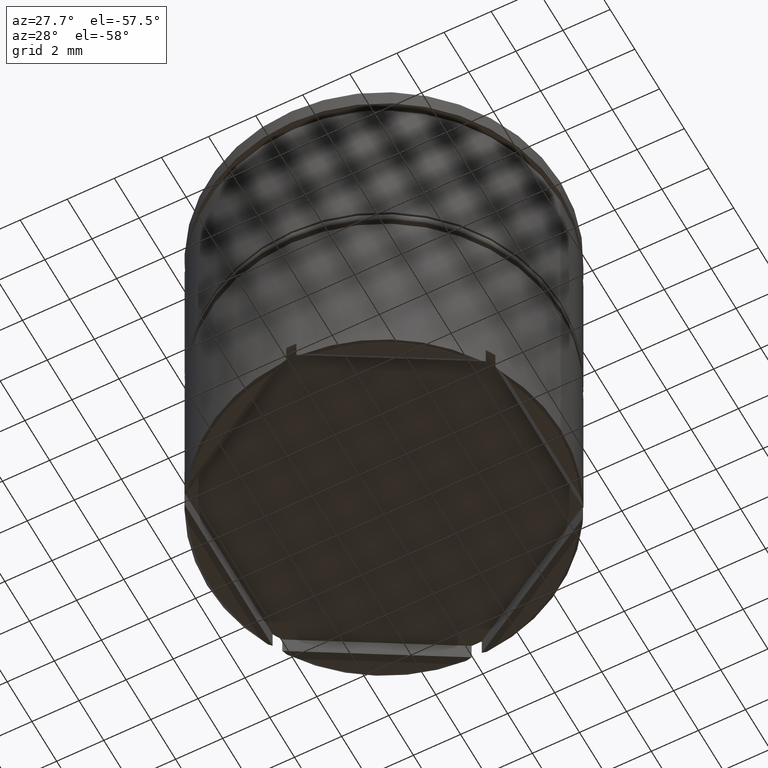
[diagram: clean part render]
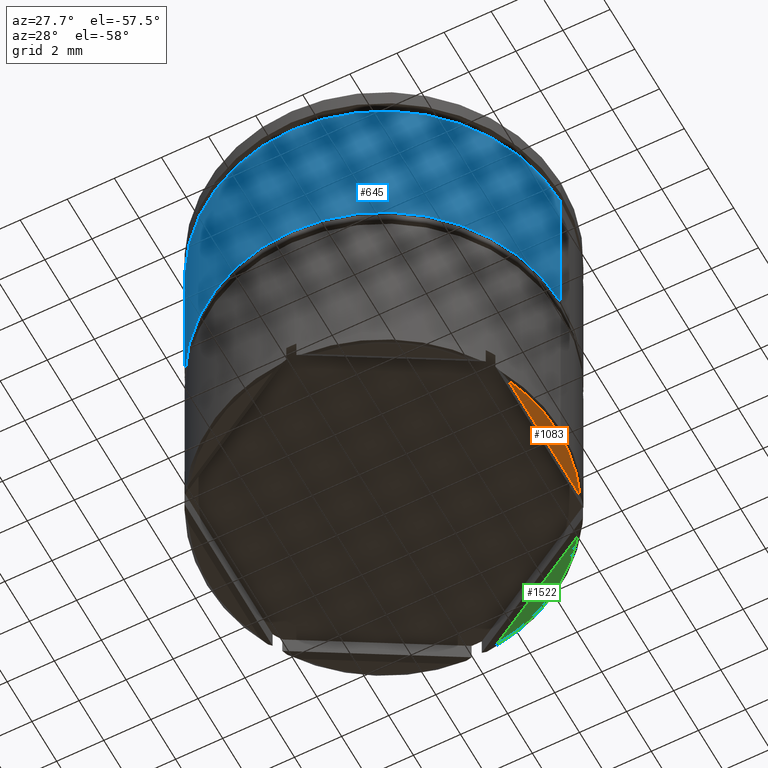
[diagram: same view with three faces highlighted in distinct colors, each labeled with its STEP entity id]
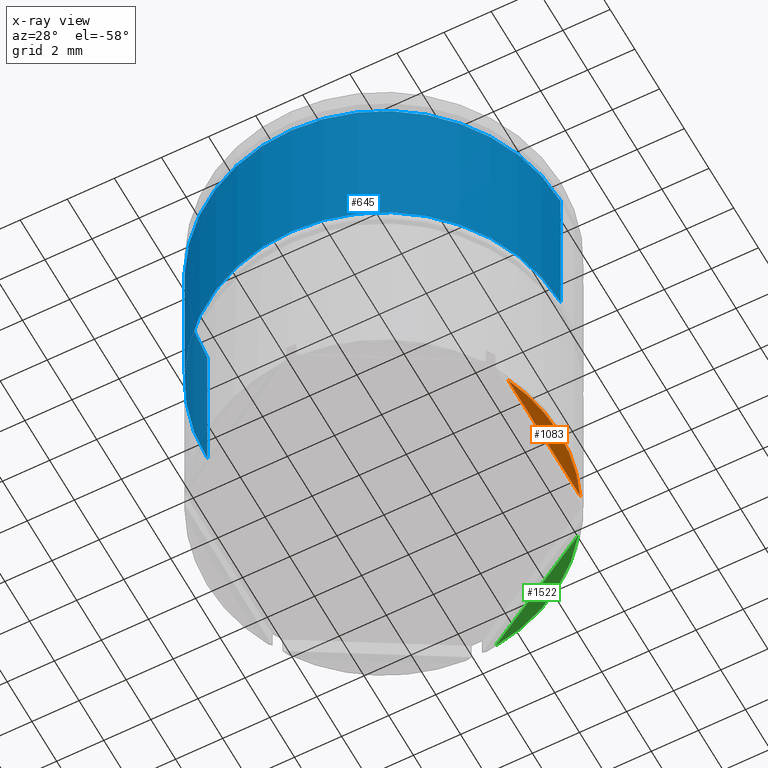
[diagram: x-ray of the same camera — body ghosted, the three highlighted faces saturated]
A machine part, auxiliary view with three faces highlighted in distinct colors.
The next image is the same camera in x-ray (body ghosted, the three faces saturated) — at least one of them is partly hidden behind the body in this view.
Their STEP definitions:

[orange] entity #1083 — the highlighted planar face has unit normal (0, 0, -1).
#33 = VERTEX_POINT ( 'NONE', #372 ) ;
#66 = EDGE_CURVE ( 'NONE', #33, #869, #1030, .T. ) ;
#72 = EDGE_LOOP ( 'NONE', ( #571, #492, #545 ) ) ;
#91 = EDGE_CURVE ( 'NONE', #1117, #33, #1125, .T. ) ;
#151 = DIRECTION ( 'NONE',  ( 0.000000000000000000, 0.000000000000000000, -1.000000000000000000 ) ) ;
#157 = CARTESIAN_POINT ( 'NONE',  ( 0.000000000000000000, 0.000000000000000000, -17.50000000000000000 ) ) ;
#270 = DIRECTION ( 'NONE',  ( -1.138117120255423023E-16, 1.000000000000000000, 0.000000000000000000 ) ) ;
#366 = DIRECTION ( 'NONE',  ( -1.000000000000000000, 0.000000000000000000, 0.000000000000000000 ) ) ;
#368 = EDGE_CURVE ( 'NONE', #869, #1117, #562, .T. ) ;
#372 = CARTESIAN_POINT ( 'NONE',  ( 6.800000000000005151, 2.918903903865290417, -17.50000000000000000 ) ) ;
#492 = ORIENTED_EDGE ( 'NONE', *, *, #368, .T. ) ;
#503 = DIRECTION ( 'NONE',  ( 0.000000000000000000, 0.000000000000000000, -1.000000000000000000 ) ) ;
#545 = ORIENTED_EDGE ( 'NONE', *, *, #91, .T. ) ;
#562 = CIRCLE ( 'NONE', #619, 7.400000000000006573 ) ;
#571 = ORIENTED_EDGE ( 'NONE', *, *, #66, .T. ) ;
#617 = AXIS2_PLACEMENT_3D ( 'NONE', #1489, #151, #1250 ) ;
#619 = AXIS2_PLACEMENT_3D ( 'NONE', #157, #1022, #366 ) ;
#825 = CARTESIAN_POINT ( 'NONE',  ( 6.800000000000005151, -2.918903903865288640, -17.50000000000000000 ) ) ;
#869 = VERTEX_POINT ( 'NONE', #1053 ) ;
#1002 = DIRECTION ( 'NONE',  ( -1.000000000000000000, 0.000000000000000000, -0.000000000000000000 ) ) ;
#1022 = DIRECTION ( 'NONE',  ( 0.000000000000000000, 0.000000000000000000, -1.000000000000000000 ) ) ;
#1030 = CIRCLE ( 'NONE', #617, 7.400000000000006573 ) ;
#1053 = CARTESIAN_POINT ( 'NONE',  ( 7.400000000000006573, 0.000000000000000000, -17.50000000000000000 ) ) ;
#1083 = ADVANCED_FACE ( 'NONE', ( #1252 ), #1127, .T. ) ;
#1117 = VERTEX_POINT ( 'NONE', #825 ) ;
#1125 = LINE ( 'NONE', #1517, #1244 ) ;
#1127 = PLANE ( 'NONE',  #1613 ) ;
#1244 = VECTOR ( 'NONE', #270, 1000.000000000000000 ) ;
#1250 = DIRECTION ( 'NONE',  ( -1.000000000000000000, 0.000000000000000000, 0.000000000000000000 ) ) ;
#1252 = FACE_OUTER_BOUND ( 'NONE', #72, .T. ) ;
#1489 = CARTESIAN_POINT ( 'NONE',  ( 0.000000000000000000, 0.000000000000000000, -17.50000000000000000 ) ) ;
#1517 = CARTESIAN_POINT ( 'NONE',  ( 6.800000000000005151, 3.346640106136307580, -17.50000000000000000 ) ) ;
#1613 = AXIS2_PLACEMENT_3D ( 'NONE', #1629, #503, #1002 ) ;
#1629 = CARTESIAN_POINT ( 'NONE',  ( 0.000000000000000000, 7.500000000000000000, -17.50000000000000000 ) ) ;

[blue] entity #645 — the highlighted cylindrical surface (partial cylindrical patch) has radius 7.5 mm, axis along (-0, -0, 1).
#11 = FACE_OUTER_BOUND ( 'NONE', #860, .T. ) ;
#26 = AXIS2_PLACEMENT_3D ( 'NONE', #1085, #1295, #75 ) ;
#75 = DIRECTION ( 'NONE',  ( 1.000000000000000000, 0.000000000000000000, 0.000000000000000000 ) ) ;
#153 = VERTEX_POINT ( 'NONE', #358 ) ;
#164 = VERTEX_POINT ( 'NONE', #445 ) ;
#234 = CARTESIAN_POINT ( 'NONE',  ( -7.500000000000000000, 9.184850993605147944E-16, -1.424999999999997380 ) ) ;
#248 = AXIS2_PLACEMENT_3D ( 'NONE', #1371, #1223, #479 ) ;
#281 = DIRECTION ( 'NONE',  ( -0.000000000000000000, -0.000000000000000000, 1.000000000000000000 ) ) ;
#358 = CARTESIAN_POINT ( 'NONE',  ( -7.500000000000000000, 9.184850993605147944E-16, -8.500000000000000000 ) ) ;
#392 = DIRECTION ( 'NONE',  ( -0.000000000000000000, -0.000000000000000000, 1.000000000000000000 ) ) ;
#445 = CARTESIAN_POINT ( 'NONE',  ( 7.500000000000000000, 0.000000000000000000, -8.500000000000000000 ) ) ;
#455 = CIRCLE ( 'NONE', #26, 7.500000000000000000 ) ;
#474 = ORIENTED_EDGE ( 'NONE', *, *, #1578, .T. ) ;
#479 = DIRECTION ( 'NONE',  ( 1.000000000000000000, 0.000000000000000000, 0.000000000000000000 ) ) ;
#504 = EDGE_CURVE ( 'NONE', #153, #164, #455, .T. ) ;
#506 = LINE ( 'NONE', #1399, #631 ) ;
#595 = VERTEX_POINT ( 'NONE', #234 ) ;
#631 = VECTOR ( 'NONE', #281, 1000.000000000000000 ) ;
#645 = ADVANCED_FACE ( 'NONE', ( #11 ), #1151, .T. ) ;
#777 = DIRECTION ( 'NONE',  ( 1.000000000000000000, 0.000000000000000000, 0.000000000000000000 ) ) ;
#784 = DIRECTION ( 'NONE',  ( -0.000000000000000000, -0.000000000000000000, 1.000000000000000000 ) ) ;
#809 = ORIENTED_EDGE ( 'NONE', *, *, #1366, .F. ) ;
#860 = EDGE_LOOP ( 'NONE', ( #809, #1427, #474, #1412 ) ) ;
#965 = EDGE_CURVE ( 'NONE', #1545, #595, #1210, .T. ) ;
#1085 = CARTESIAN_POINT ( 'NONE',  ( 0.000000000000000000, 0.000000000000000000, -8.500000000000000000 ) ) ;
#1151 = CYLINDRICAL_SURFACE ( 'NONE', #1472, 7.500000000000000000 ) ;
#1168 = CARTESIAN_POINT ( 'NONE',  ( 7.500000000000000000, 0.000000000000000000, -1.424999999999997380 ) ) ;
#1210 = CIRCLE ( 'NONE', #248, 7.500000000000000000 ) ;
#1223 = DIRECTION ( 'NONE',  ( 0.000000000000000000, 0.000000000000000000, -1.000000000000000000 ) ) ;
#1295 = DIRECTION ( 'NONE',  ( -0.000000000000000000, -0.000000000000000000, 1.000000000000000000 ) ) ;
#1313 = LINE ( 'NONE', #1404, #1468 ) ;
#1366 = EDGE_CURVE ( 'NONE', #153, #595, #506, .T. ) ;
#1371 = CARTESIAN_POINT ( 'NONE',  ( 0.000000000000000000, 0.000000000000000000, -1.424999999999997380 ) ) ;
#1388 = CARTESIAN_POINT ( 'NONE',  ( 0.000000000000000000, 0.000000000000000000, 0.000000000000000000 ) ) ;
#1399 = CARTESIAN_POINT ( 'NONE',  ( -7.500000000000000000, 9.184850993605147944E-16, 0.000000000000000000 ) ) ;
#1404 = CARTESIAN_POINT ( 'NONE',  ( 7.500000000000000000, 0.000000000000000000, 0.000000000000000000 ) ) ;
#1412 = ORIENTED_EDGE ( 'NONE', *, *, #965, .T. ) ;
#1427 = ORIENTED_EDGE ( 'NONE', *, *, #504, .T. ) ;
#1468 = VECTOR ( 'NONE', #784, 1000.000000000000000 ) ;
#1472 = AXIS2_PLACEMENT_3D ( 'NONE', #1388, #392, #777 ) ;
#1545 = VERTEX_POINT ( 'NONE', #1168 ) ;
#1578 = EDGE_CURVE ( 'NONE', #164, #1545, #1313, .T. ) ;

[green] entity #1522 — the highlighted planar face has unit normal (0, 0, -1).
#27 = CARTESIAN_POINT ( 'NONE',  ( 0.000000000000000000, 7.500000000000000000, -17.50000000000000000 ) ) ;
#152 = FACE_OUTER_BOUND ( 'NONE', #868, .T. ) ;
#159 = CARTESIAN_POINT ( 'NONE',  ( 0.000000000000000000, 0.000000000000000000, -17.50000000000000000 ) ) ;
#251 = VECTOR ( 'NONE', #1108, 999.9999999999998863 ) ;
#390 = CIRCLE ( 'NONE', #1546, 7.400000000000006573 ) ;
#419 = VERTEX_POINT ( 'NONE', #1585 ) ;
#463 = ORIENTED_EDGE ( 'NONE', *, *, #1396, .T. ) ;
#543 = DIRECTION ( 'NONE',  ( -1.000000000000000000, 0.000000000000000000, 0.000000000000000000 ) ) ;
#548 = EDGE_CURVE ( 'NONE', #1349, #419, #845, .T. ) ;
#551 = AXIS2_PLACEMENT_3D ( 'NONE', #27, #924, #1431 ) ;
#845 = LINE ( 'NONE', #1092, #251 ) ;
#868 = EDGE_LOOP ( 'NONE', ( #463, #1451 ) ) ;
#924 = DIRECTION ( 'NONE',  ( 0.000000000000000000, 0.000000000000000000, -1.000000000000000000 ) ) ;
#1025 = DIRECTION ( 'NONE',  ( 0.000000000000000000, 0.000000000000000000, -1.000000000000000000 ) ) ;
#1092 = CARTESIAN_POINT ( 'NONE',  ( 0.5017246507621122564, 7.562292798802341842, -17.50000000000000000 ) ) ;
#1108 = DIRECTION ( 'NONE',  ( -0.8660254037844385966, 0.5000000000000002220, 0.000000000000000000 ) ) ;
#1154 = PLANE ( 'NONE',  #551 ) ;
#1349 = VERTEX_POINT ( 'NONE', #1503 ) ;
#1396 = EDGE_CURVE ( 'NONE', #419, #1349, #390, .T. ) ;
#1431 = DIRECTION ( 'NONE',  ( -1.000000000000000000, 0.000000000000000000, -0.000000000000000000 ) ) ;
#1451 = ORIENTED_EDGE ( 'NONE', *, *, #548, .T. ) ;
#1503 = CARTESIAN_POINT ( 'NONE',  ( 5.927844931952911622, 4.429520793801547285, -17.50000000000000000 ) ) ;
#1522 = ADVANCED_FACE ( 'NONE', ( #152 ), #1154, .T. ) ;
#1546 = AXIS2_PLACEMENT_3D ( 'NONE', #159, #1025, #543 ) ;
#1585 = CARTESIAN_POINT ( 'NONE',  ( 0.8721550680470955275, 7.348424697666831484, -17.50000000000000000 ) ) ;